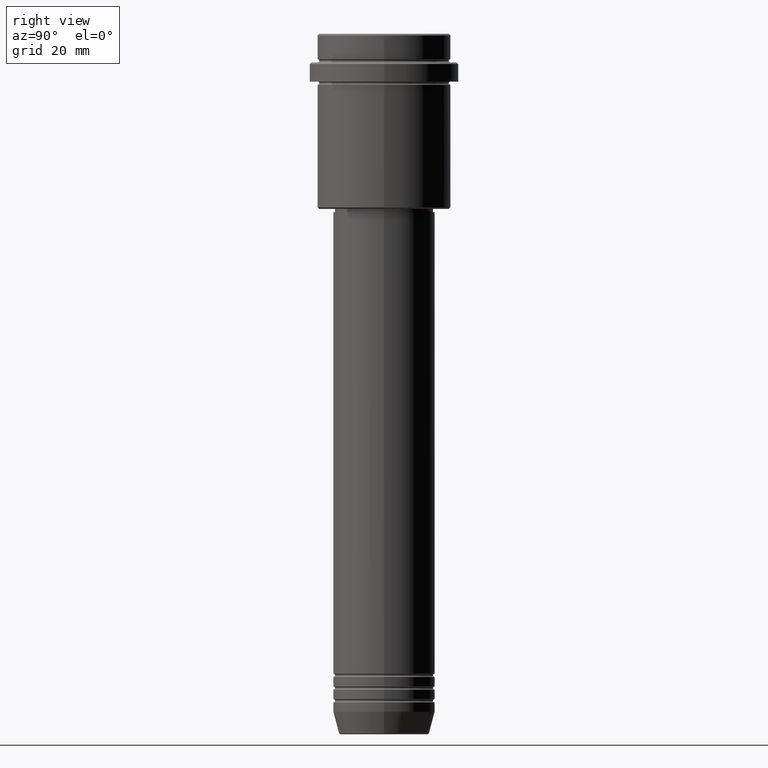
[diagram: clean part render]
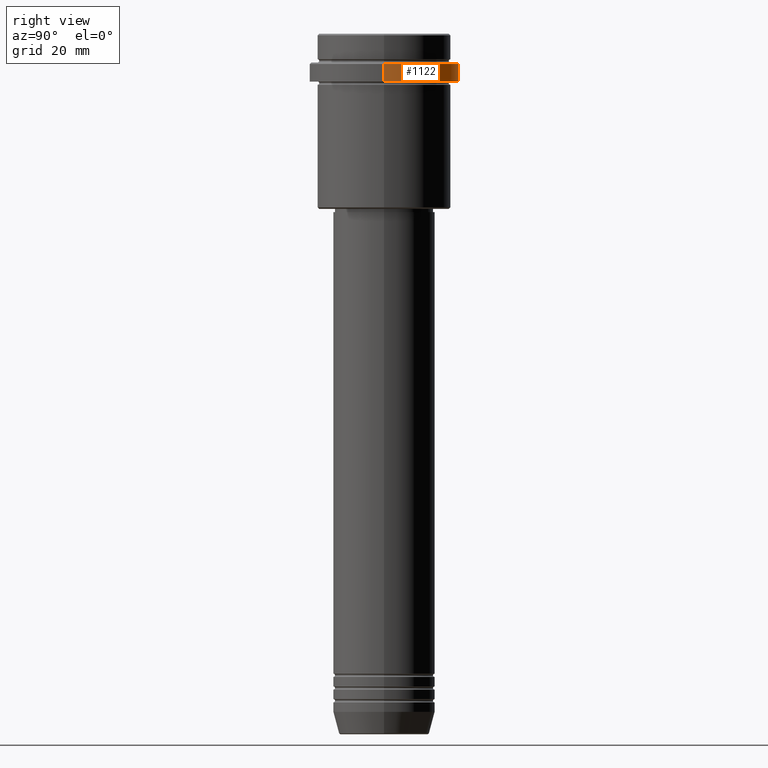
[diagram: same view with one face highlighted and labeled with its STEP entity id]
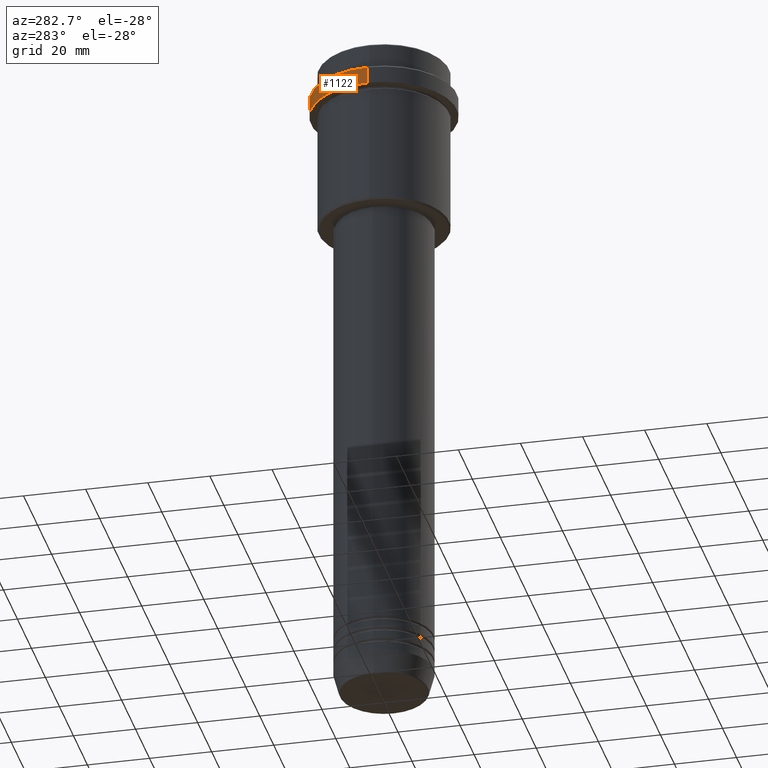
[diagram: same view with one face highlighted and labeled with its STEP entity id]
A machine part, right view. The second image highlights one B-rep face of the part: STEP entity #1122.
A second angle (auxiliary view) of the same face is appended — the face is thin or edge-on in the first view.
In plain terms, the highlighted cylindrical surface (partial cylindrical patch) has radius 23.5 mm, axis along (-0, -0, 1).
Its self-contained STEP definition (entity closure, byte-faithful):
#9 = DIRECTION ( 'NONE',  ( -0.000000000000000000, -0.000000000000000000, 1.000000000000000000 ) ) ;
#35 = DIRECTION ( 'NONE',  ( 0.000000000000000000, 0.000000000000000000, -1.000000000000000000 ) ) ;
#46 = CARTESIAN_POINT ( 'NONE',  ( -23.50000000000000000, 2.877919977996280320E-15, -9.499999999999971578 ) ) ;
#98 = EDGE_LOOP ( 'NONE', ( #679, #1108, #1024, #833 ) ) ;
#156 = DIRECTION ( 'NONE',  ( -0.000000000000000000, -0.000000000000000000, 1.000000000000000000 ) ) ;
#163 = VERTEX_POINT ( 'NONE', #46 ) ;
#204 = EDGE_CURVE ( 'NONE', #1332, #882, #1272, .T. ) ;
#206 = VERTEX_POINT ( 'NONE', #1368 ) ;
#252 = CIRCLE ( 'NONE', #1348, 23.50000000000000000 ) ;
#367 = CARTESIAN_POINT ( 'NONE',  ( 0.000000000000000000, 0.000000000000000000, -15.00000000000000000 ) ) ;
#369 = FACE_OUTER_BOUND ( 'NONE', #98, .T. ) ;
#443 = EDGE_CURVE ( 'NONE', #882, #163, #1080, .T. ) ;
#496 = DIRECTION ( 'NONE',  ( -0.000000000000000000, -0.000000000000000000, 1.000000000000000000 ) ) ;
#524 = VECTOR ( 'NONE', #9, 1000.000000000000000 ) ;
#584 = CARTESIAN_POINT ( 'NONE',  ( 23.50000000000000000, 0.000000000000000000, 0.000000000000000000 ) ) ;
#605 = CARTESIAN_POINT ( 'NONE',  ( 23.50000000000000355, 0.000000000000000000, -15.00000000000000000 ) ) ;
#610 = EDGE_CURVE ( 'NONE', #1332, #206, #1353, .T. ) ;
#639 = CYLINDRICAL_SURFACE ( 'NONE', #795, 23.50000000000000000 ) ;
#661 = VECTOR ( 'NONE', #156, 1000.000000000000000 ) ;
#679 = ORIENTED_EDGE ( 'NONE', *, *, #204, .T. ) ;
#703 = AXIS2_PLACEMENT_3D ( 'NONE', #367, #496, #910 ) ;
#733 = CARTESIAN_POINT ( 'NONE',  ( 0.000000000000000000, 0.000000000000000000, 0.000000000000000000 ) ) ;
#795 = AXIS2_PLACEMENT_3D ( 'NONE', #733, #965, #1060 ) ;
#833 = ORIENTED_EDGE ( 'NONE', *, *, #610, .F. ) ;
#882 = VERTEX_POINT ( 'NONE', #1105 ) ;
#910 = DIRECTION ( 'NONE',  ( 1.000000000000000000, 0.000000000000000000, 0.000000000000000000 ) ) ;
#913 = EDGE_CURVE ( 'NONE', #163, #206, #252, .T. ) ;
#965 = DIRECTION ( 'NONE',  ( -0.000000000000000000, -0.000000000000000000, 1.000000000000000000 ) ) ;
#1024 = ORIENTED_EDGE ( 'NONE', *, *, #913, .T. ) ;
#1060 = DIRECTION ( 'NONE',  ( 1.000000000000000000, 0.000000000000000000, 0.000000000000000000 ) ) ;
#1080 = LINE ( 'NONE', #1094, #524 ) ;
#1094 = CARTESIAN_POINT ( 'NONE',  ( -23.50000000000000000, 2.877919977996280320E-15, 0.000000000000000000 ) ) ;
#1105 = CARTESIAN_POINT ( 'NONE',  ( -23.50000000000000711, 2.877919977996281109E-15, -15.00000000000000000 ) ) ;
#1108 = ORIENTED_EDGE ( 'NONE', *, *, #443, .T. ) ;
#1122 = ADVANCED_FACE ( 'NONE', ( #369 ), #639, .T. ) ;
#1215 = DIRECTION ( 'NONE',  ( 1.000000000000000000, 0.000000000000000000, 0.000000000000000000 ) ) ;
#1232 = CARTESIAN_POINT ( 'NONE',  ( 0.000000000000000000, 0.000000000000000000, -9.499999999999971578 ) ) ;
#1272 = CIRCLE ( 'NONE', #703, 23.50000000000000355 ) ;
#1332 = VERTEX_POINT ( 'NONE', #605 ) ;
#1348 = AXIS2_PLACEMENT_3D ( 'NONE', #1232, #35, #1215 ) ;
#1353 = LINE ( 'NONE', #584, #661 ) ;
#1368 = CARTESIAN_POINT ( 'NONE',  ( 23.50000000000000000, 0.000000000000000000, -9.499999999999971578 ) ) ;